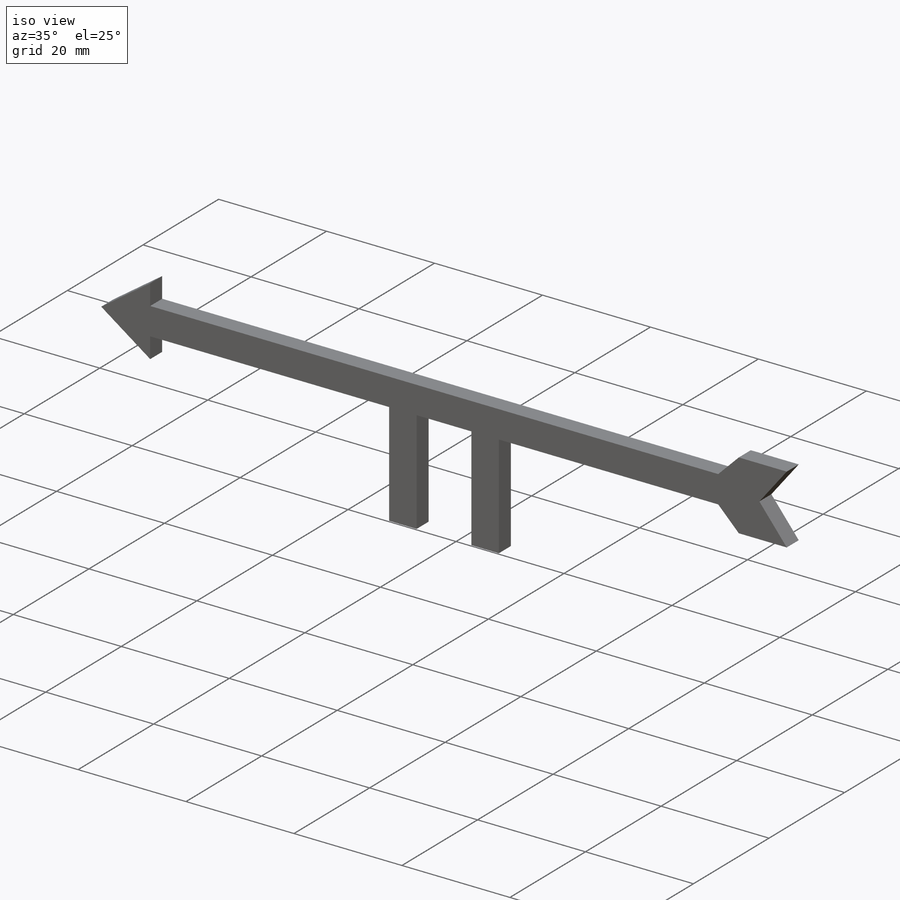
[diagram: iso view]
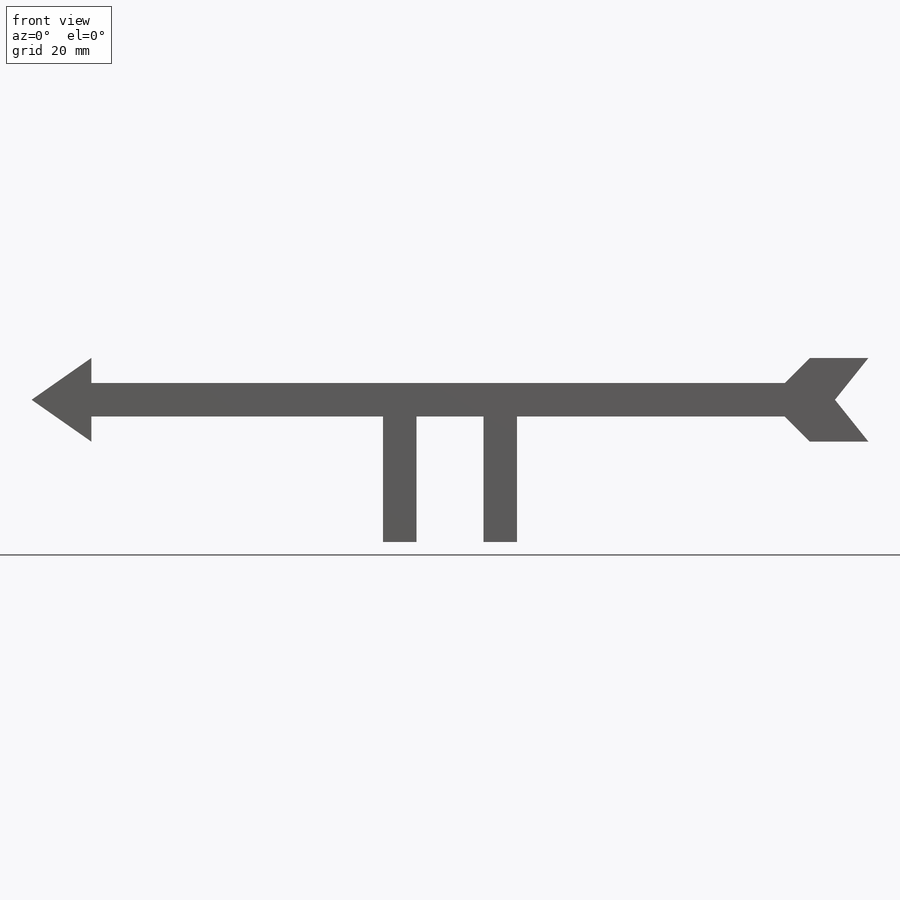
[diagram: front view]
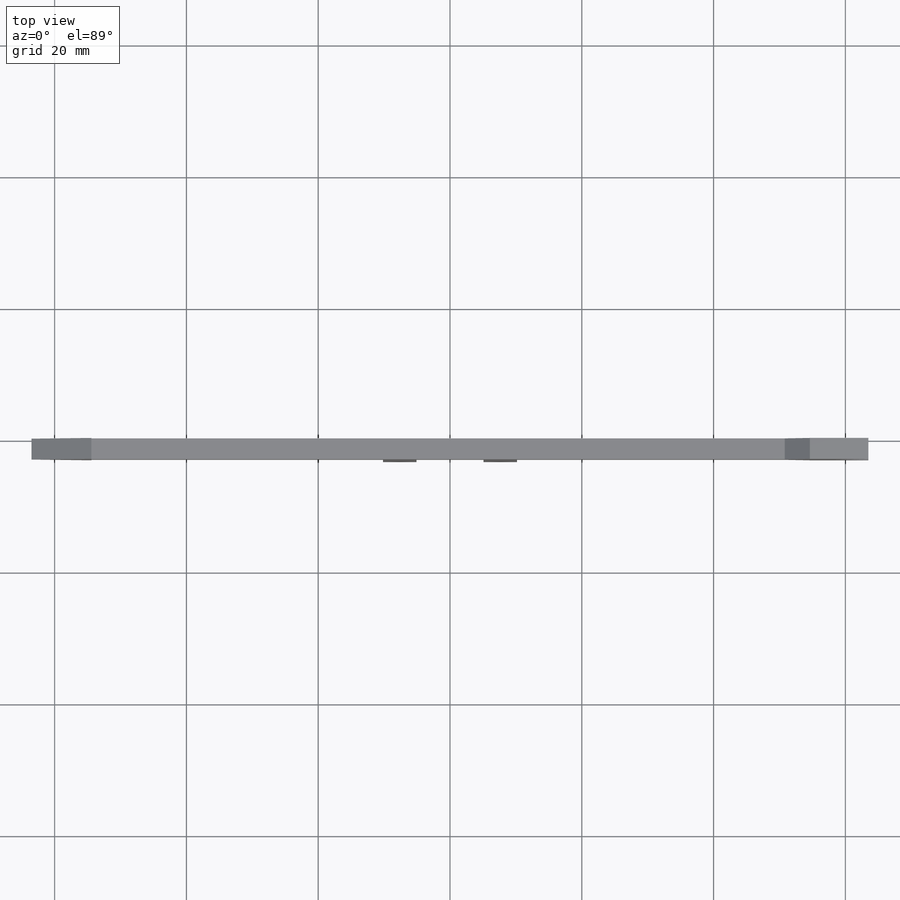
[diagram: top view]
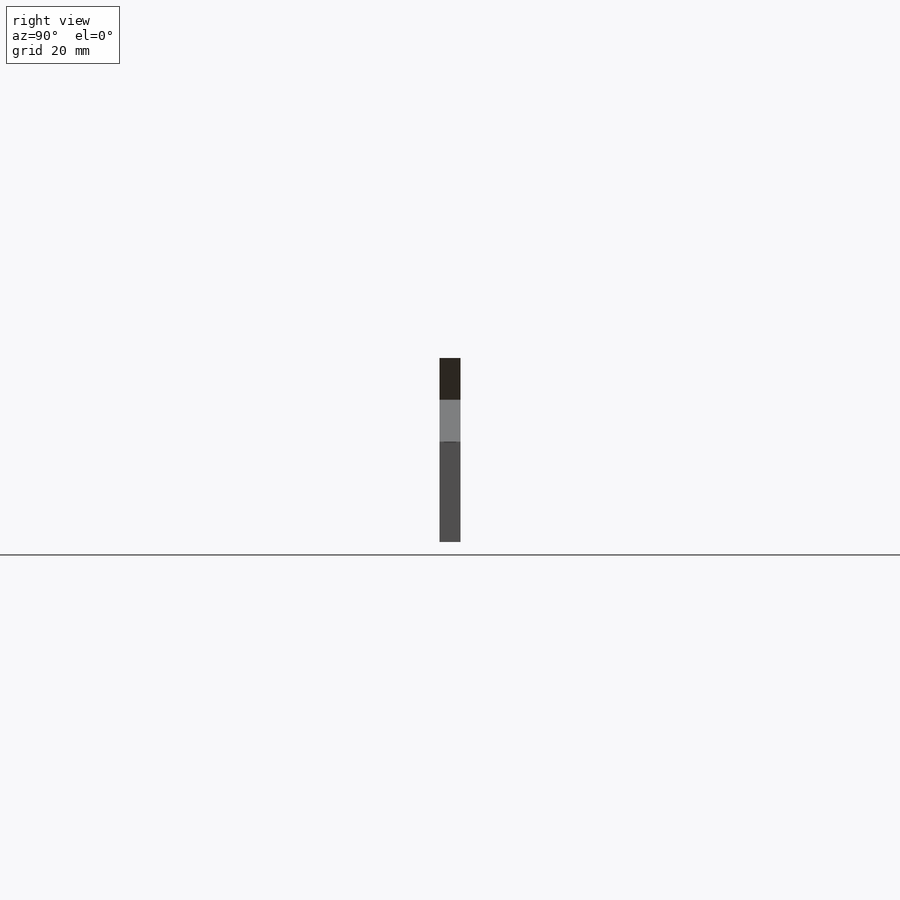
[diagram: right view]
SOLIDWORKS PART (.sldprt)
format: sldprt  version: not decoded by parser v0  size: 217,600 bytes
history: native  units: mm
features: sketch x6, cut_extrude x4, mirror x4, extrude x2, material x1, chamfer x1 (+11 scaffold rows collapsed)
feature tree (29):
  scaffold x11  (default folders/planes/origin — collapsed)
  material  "Material <not specified>"
  sketch  "Sketch1"  dims[D1=127.0mm D2=12.7mm]
  extrude  "Boss-Extrude1"  Depth=3.175mm
  sketch  "Sketch2"  dims[c1.D1=6.35mm c2.D1=~53.197269deg c3.D1=~13.779905mm c4.D1=55.0deg]
  cut_extrude  "Cut-Extrude1"  Depth=3.175mm
  mirror  "Mirror1"
  sketch  "Sketch3"  dims[D1=0.0mm D2=12.7mm D3=7.62mm]
  cut_extrude  "Cut-Extrude2"  Depth=3.175mm
  mirror  "Mirror2"
  sketch  "Sketch4"  dims[c1.D1=6.35mm c2.D1=90.0deg c3.D1=7.62mm c3.D2=6.35mm c4.D1=5.08mm]
  cut_extrude  "Cut-Extrude3"  Depth=3.175mm
  mirror  "Mirror3"
  chamfer  "Chamfer1"  Distance=3.81mm Angle=45deg
  sketch  "Sketch5"  dims[c1.D1=6.35mm c1.D2=~1.81563mm c2.D1=5.08mm c2.D2=5.08mm]
  extrude  "Boss-Extrude2"  Depth=19.05mm
  mirror  "Mirror4"
  sketch  "Sketch6"  dims[D1=4.318mm D2=17.272mm D3=8.89mm D4=3.302mm D5=6.35mm]
  cut_extrude  "Cut-Extrude4"  Depth=3.175mm
decode coverage: 13 of 17 modeling features carry decoded parameters
note: ~ marks probable driven/reference dimensions
note: suppression state not decoded; provenance and decode notes live in map.json
